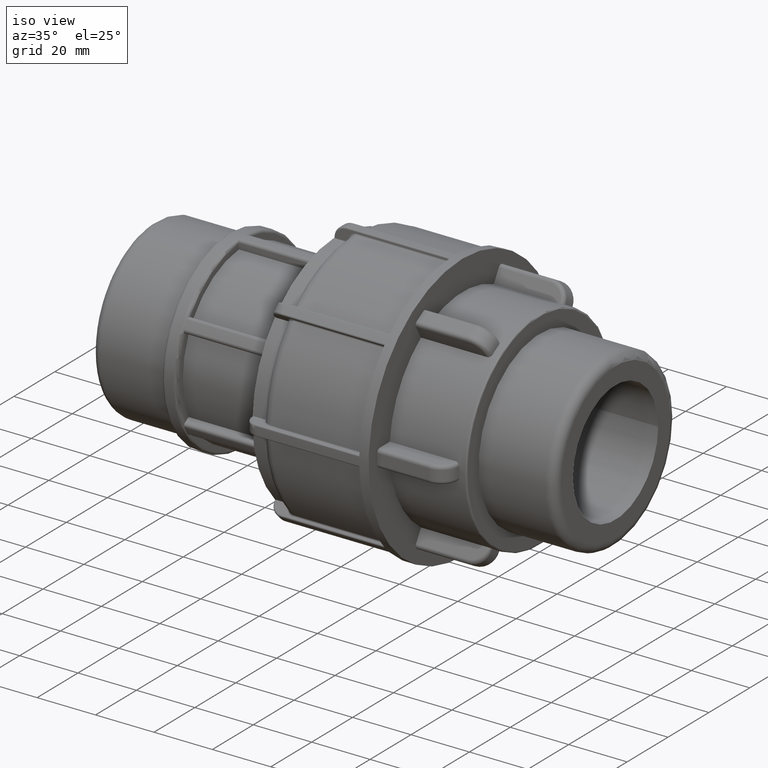
[diagram: clean part render]
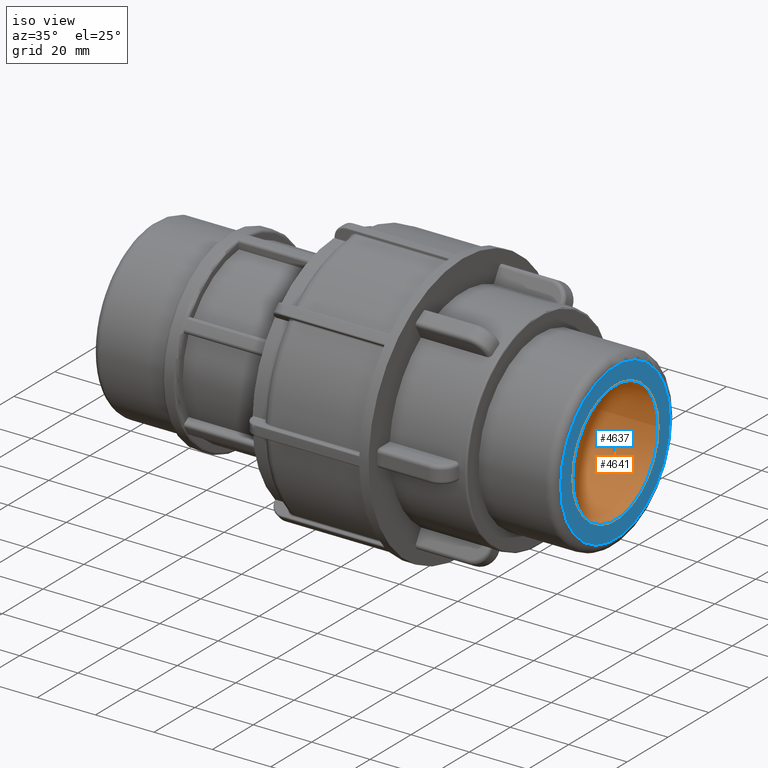
[diagram: same view with the hole feature highlighted: cylindrical wall and planar end face, labeled with their STEP entity ids]
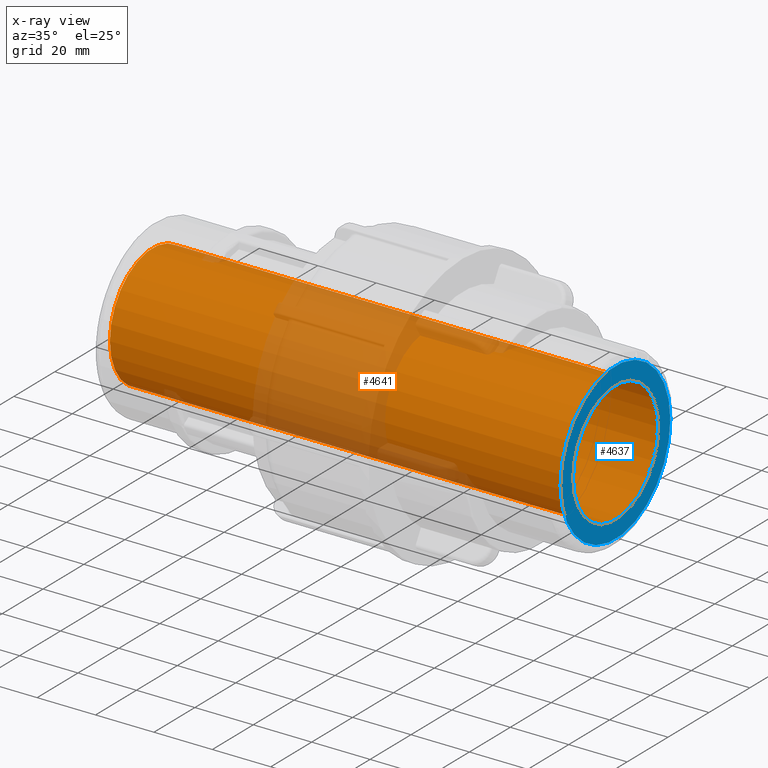
[diagram: x-ray of the same camera — body ghosted, the hole faces saturated]
A machine part, iso view. The highlighted faces form one hole feature of diameter 41.7298 mm: the cylindrical wall (entity #4641, orange) and its adjacent planar end face (entity #4637, blue) — they share a circular edge in the B-rep.
The next image is the same camera in x-ray (body ghosted, the hole faces saturated) — the bore reads through the body.
Wall:
#64=FACE_BOUND('',#745,.T.);
#454=FACE_OUTER_BOUND('',#744,.T.);
#744=EDGE_LOOP('',(#4243));
#745=EDGE_LOOP('',(#4244));
#1728=CIRCLE('',#5163,20.8649);
#1731=CIRCLE('',#5168,20.8649);
#2165=VERTEX_POINT('',#9460);
#2168=VERTEX_POINT('',#9468);
#2857=EDGE_CURVE('',#2165,#2165,#1728,.T.);
#2860=EDGE_CURVE('',#2168,#2168,#1731,.T.);
#4243=ORIENTED_EDGE('',*,*,#2857,.T.);
#4244=ORIENTED_EDGE('',*,*,#2860,.F.);
#4368=CYLINDRICAL_SURFACE('',#5170,20.8649);
#4641=ADVANCED_FACE('',(#454,#64),#4368,.F.);
#5163=AXIS2_PLACEMENT_3D('',#9461,#6505,#6506);
#5168=AXIS2_PLACEMENT_3D('',#9469,#6515,#6516);
#5170=AXIS2_PLACEMENT_3D('',#9471,#6519,#6520);
#6505=DIRECTION('center_axis',(1.,0.,0.));
#6506=DIRECTION('ref_axis',(0.,0.,-1.));
#6515=DIRECTION('center_axis',(1.,0.,0.));
#6516=DIRECTION('ref_axis',(0.,0.,-1.));
#6519=DIRECTION('center_axis',(1.,0.,0.));
#6520=DIRECTION('ref_axis',(0.,1.,0.));
#9460=CARTESIAN_POINT('',(-1.5680348613382E-16,20.8649,0.));
#9461=CARTESIAN_POINT('Origin',(0.,0.,0.));
#9468=CARTESIAN_POINT('',(-158.5,20.8649,0.));
#9469=CARTESIAN_POINT('Origin',(-158.5,0.,0.));
#9471=CARTESIAN_POINT('Origin',(-79.25,0.,0.));
End face:
#60=FACE_BOUND('',#737,.T.);
#147=PLANE('',#5162);
#450=FACE_OUTER_BOUND('',#736,.T.);
#736=EDGE_LOOP('',(#4235));
#737=EDGE_LOOP('',(#4236));
#1727=CIRCLE('',#5160,26.8263);
#1728=CIRCLE('',#5163,20.8649);
#2164=VERTEX_POINT('',#9456);
#2165=VERTEX_POINT('',#9460);
#2856=EDGE_CURVE('',#2164,#2164,#1727,.T.);
#2857=EDGE_CURVE('',#2165,#2165,#1728,.T.);
#4235=ORIENTED_EDGE('',*,*,#2856,.F.);
#4236=ORIENTED_EDGE('',*,*,#2857,.F.);
#4637=ADVANCED_FACE('',(#450,#60),#147,.T.);
#5160=AXIS2_PLACEMENT_3D('',#9457,#6499,#6500);
#5162=AXIS2_PLACEMENT_3D('',#9459,#6503,#6504);
#5163=AXIS2_PLACEMENT_3D('',#9461,#6505,#6506);
#6499=DIRECTION('center_axis',(-1.,0.,0.));
#6500=DIRECTION('ref_axis',(0.,-1.,1.83697019872103E-16));
#6503=DIRECTION('center_axis',(1.,0.,0.));
#6504=DIRECTION('ref_axis',(0.,0.,-1.));
#6505=DIRECTION('center_axis',(1.,0.,0.));
#6506=DIRECTION('ref_axis',(0.,0.,-1.));
#9456=CARTESIAN_POINT('',(0.,26.8263,-8.21318560699166E-15));
#9457=CARTESIAN_POINT('Origin',(0.,0.,0.));
#9459=CARTESIAN_POINT('Origin',(-1.5680348613382E-16,20.8649,0.));
#9460=CARTESIAN_POINT('',(-1.5680348613382E-16,20.8649,0.));
#9461=CARTESIAN_POINT('Origin',(0.,0.,0.));